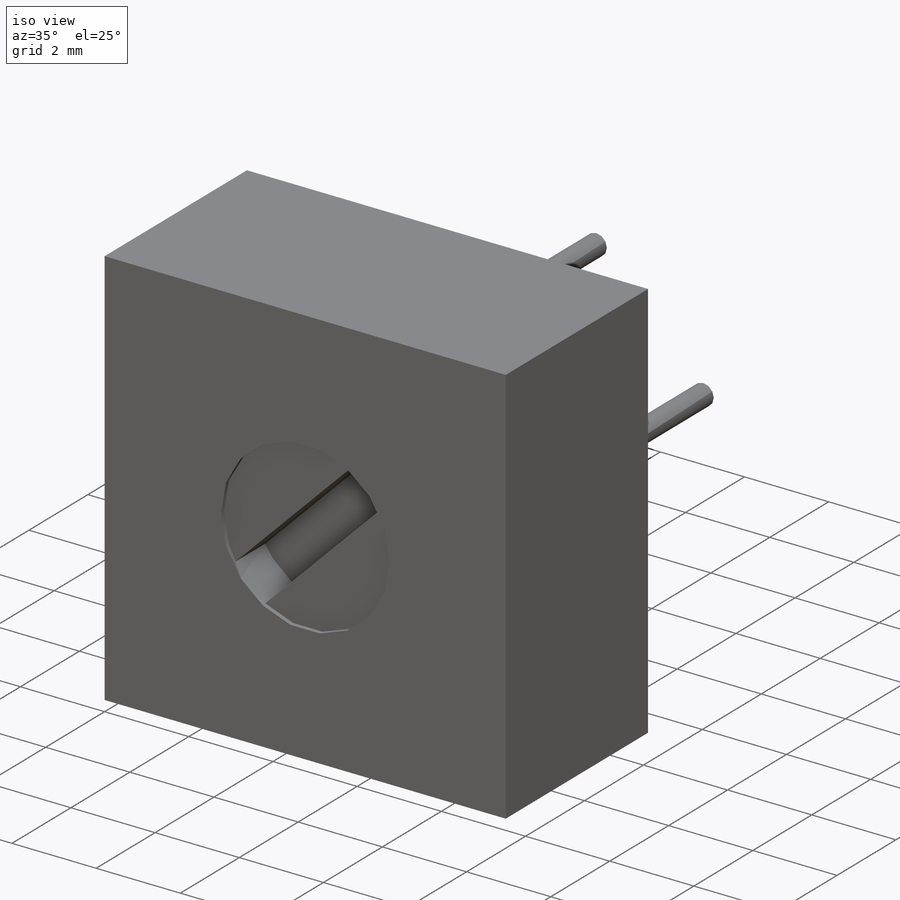
[diagram: iso view]
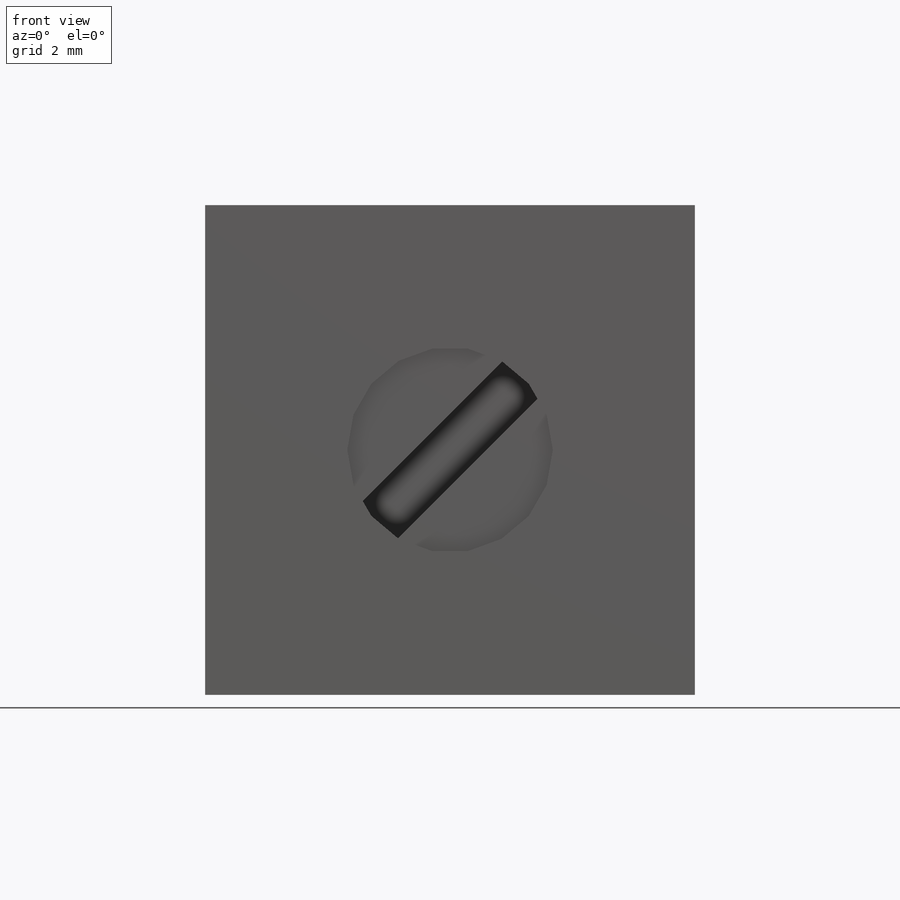
[diagram: front view]
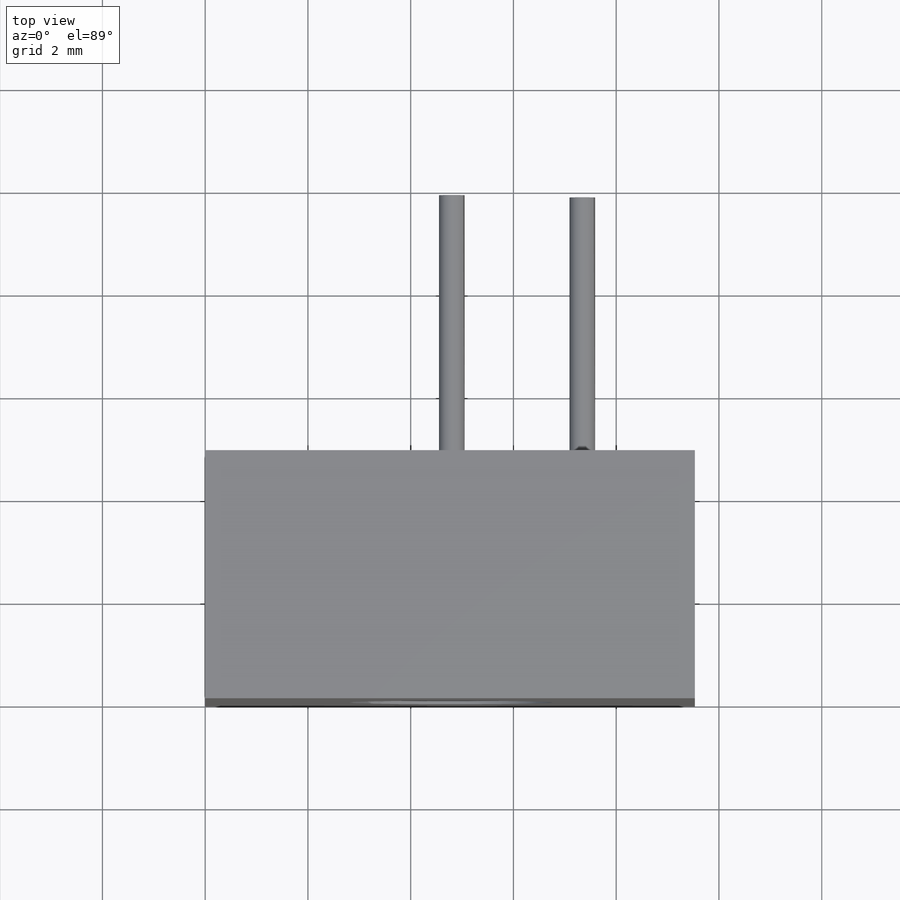
[diagram: top view]
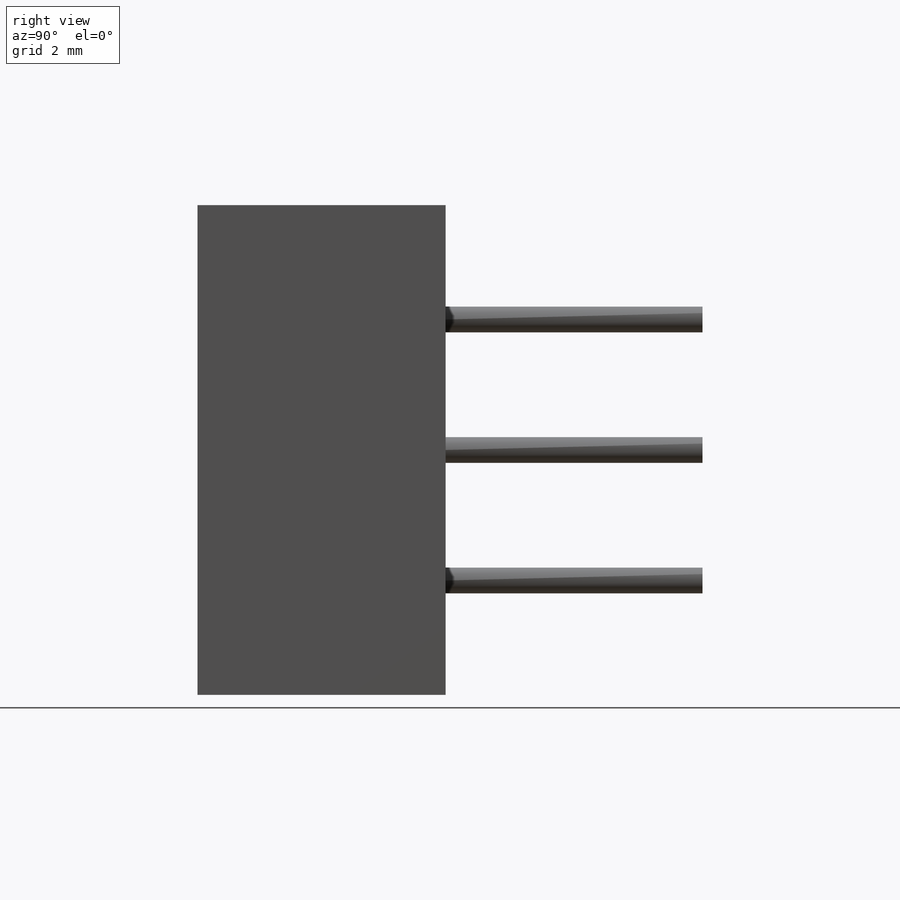
[diagram: right view]
SOLIDWORKS PART (.sldprt)
format: sldprt  version: not decoded by parser v0  size: 191,488 bytes
history: native  units: mm
features: sketch x5, extrude x2, cut_extrude x2, material x1, plane x1 (+12 scaffold rows collapsed)
feature tree (23):
  scaffold x12  (default folders/planes/origin — collapsed)
  material  "Material <not specified>"
  sketch  "Sketch1"  dims[D1=9.53mm]
  extrude  "Basic Shape"  Depth=4.83mm
  sketch  "Sketch2"  dims[D5=0.5mm D1=4.8mm D2=2.54mm D3=2.54mm D4=2.54mm]
  extrude  "Pins"  Depth=5mm
  sketch  "Sketch3"  dims[D1=4.0mm]
  cut_extrude  "Adjuster"  Depth=0.1mm
  sketch  "Sketch4"  dims[c1.D2=4.0mm c1.D1=1.0mm c2.D2=~3.872983mm c3.D2=45.0deg]
  cut_extrude  "Adjuster Slot"  Depth=1mm
  plane  "Board Plane"  Offset=6mm
  sketch  "Component_Outline"
decode coverage: 8 of 9 modeling features carry decoded parameters
note: ~ marks probable driven/reference dimensions
note: suppression state not decoded; provenance and decode notes live in map.json
